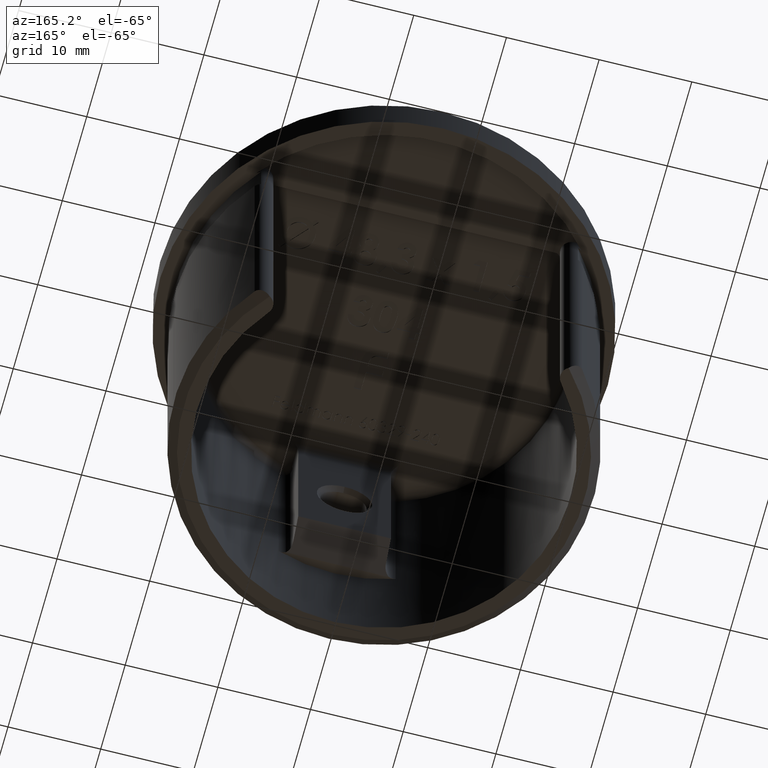
[diagram: clean part render]
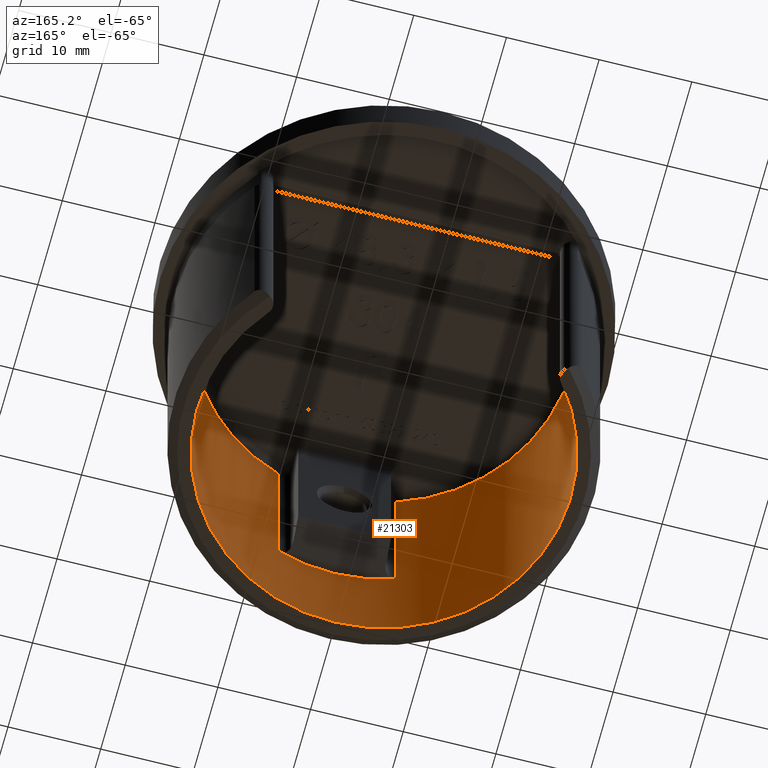
[diagram: same view with one face highlighted and labeled with its STEP entity id]
A machine part, auxiliary view. The second image highlights one B-rep face of the part: STEP entity #21303.
In plain terms, the highlighted cylindrical surface (partial cylindrical patch) has radius 20.15 mm, axis along (-0, -0, 1).
Its self-contained STEP definition (entity closure, byte-faithful):
#796 = ORIENTED_EDGE ( 'NONE', *, *, #9240, .T. ) ;
#821 = CARTESIAN_POINT ( 'NONE',  ( -6.313315926892952800, -19.13542636073835700, -18.00000000000000000 ) ) ;
#1002 = EDGE_CURVE ( 'NONE', #18000, #10190, #8335, .T. ) ;
#1012 = DIRECTION ( 'NONE',  ( -0.0000000000000000000, -0.0000000000000000000, 1.000000000000000000 ) ) ;
#1153 = EDGE_CURVE ( 'NONE', #8378, #13170, #20384, .T. ) ;
#1419 = EDGE_CURVE ( 'NONE', #24452, #14717, #18883, .T. ) ;
#1540 = ORIENTED_EDGE ( 'NONE', *, *, #20988, .T. ) ;
#1795 = CARTESIAN_POINT ( 'NONE',  ( 15.76649122807015000, 12.54751984876640400, -30.00000000000000000 ) ) ;
#2229 = DIRECTION ( 'NONE',  ( -0.0000000000000000000, -0.0000000000000000000, 1.000000000000000000 ) ) ;
#2937 = CIRCLE ( 'NONE', #4903, 20.14999999999999900 ) ;
#3221 = CARTESIAN_POINT ( 'NONE',  ( 0.0000000000000000000, 0.0000000000000000000, 1.000000000000000900 ) ) ;
#3381 = DIRECTION ( 'NONE',  ( -0.0000000000000000000, -0.0000000000000000000, 1.000000000000000000 ) ) ;
#3453 = VECTOR ( 'NONE', #10691, 1000.000000000000000 ) ;
#3459 = DIRECTION ( 'NONE',  ( -1.000000000000000000, 0.0000000000000000000, 0.0000000000000000000 ) ) ;
#3809 = CIRCLE ( 'NONE', #6006, 20.14999999999999900 ) ;
#3869 = CARTESIAN_POINT ( 'NONE',  ( 0.0000000000000000000, 0.0000000000000000000, -30.00000000000000000 ) ) ;
#4368 = CARTESIAN_POINT ( 'NONE',  ( 0.0000000000000000000, 0.0000000000000000000, -18.00000000000000000 ) ) ;
#4465 = ORIENTED_EDGE ( 'NONE', *, *, #12644, .F. ) ;
#4868 = DIRECTION ( 'NONE',  ( -0.0000000000000000000, -0.0000000000000000000, 1.000000000000000000 ) ) ;
#4903 = AXIS2_PLACEMENT_3D ( 'NONE', #20409, #14712, #3459 ) ;
#4943 = CARTESIAN_POINT ( 'NONE',  ( -15.76649122807015300, 12.54751984876640200, -30.00000000000000000 ) ) ;
#5634 = CARTESIAN_POINT ( 'NONE',  ( 15.76649122807015000, 12.54751984876640400, -30.00000000000000000 ) ) ;
#5801 = CYLINDRICAL_SURFACE ( 'NONE', #9521, 20.14999999999999900 ) ;
#6006 = AXIS2_PLACEMENT_3D ( 'NONE', #3869, #2229, #18993 ) ;
#6076 = DIRECTION ( 'NONE',  ( -0.0000000000000000000, -0.0000000000000000000, 1.000000000000000000 ) ) ;
#6249 = DIRECTION ( 'NONE',  ( 0.0000000000000000000, 0.0000000000000000000, 1.000000000000000000 ) ) ;
#6578 = ORIENTED_EDGE ( 'NONE', *, *, #1419, .T. ) ;
#7896 = ORIENTED_EDGE ( 'NONE', *, *, #17235, .T. ) ;
#7900 = ORIENTED_EDGE ( 'NONE', *, *, #1002, .T. ) ;
#8262 = CARTESIAN_POINT ( 'NONE',  ( 0.0000000000000000000, 0.0000000000000000000, 1.000000000000000900 ) ) ;
#8335 = CIRCLE ( 'NONE', #23057, 20.14999999999999900 ) ;
#8378 = VERTEX_POINT ( 'NONE', #8738 ) ;
#8435 = CARTESIAN_POINT ( 'NONE',  ( 6.313315926892952800, -19.13542636073835700, -18.00000000000000000 ) ) ;
#8672 = CARTESIAN_POINT ( 'NONE',  ( 0.0000000000000000000, 0.0000000000000000000, 1.000000000000000900 ) ) ;
#8738 = CARTESIAN_POINT ( 'NONE',  ( -6.313315926892948400, -19.13542636073834300, 1.000000000000000900 ) ) ;
#9196 = VECTOR ( 'NONE', #10061, 1000.000000000000000 ) ;
#9240 = EDGE_CURVE ( 'NONE', #22379, #19460, #22510, .T. ) ;
#9521 = AXIS2_PLACEMENT_3D ( 'NONE', #23025, #6076, #19211 ) ;
#10043 = DIRECTION ( 'NONE',  ( 1.000000000000000000, 0.0000000000000000000, 0.0000000000000000000 ) ) ;
#10061 = DIRECTION ( 'NONE',  ( -0.0000000000000000000, -0.0000000000000000000, 1.000000000000000000 ) ) ;
#10190 = VERTEX_POINT ( 'NONE', #10834 ) ;
#10351 = VERTEX_POINT ( 'NONE', #1795 ) ;
#10691 = DIRECTION ( 'NONE',  ( -0.0000000000000000000, -0.0000000000000000000, 1.000000000000000000 ) ) ;
#10834 = CARTESIAN_POINT ( 'NONE',  ( -15.82882031626141000, 12.46879895561356500, 1.000000000000000000 ) ) ;
#11066 = AXIS2_PLACEMENT_3D ( 'NONE', #4368, #6249, #10043 ) ;
#11195 = DIRECTION ( 'NONE',  ( -1.000000000000000000, 2.504663143554353200E-013, 0.0000000000000000000 ) ) ;
#12029 = DIRECTION ( 'NONE',  ( -1.000000000000000000, 0.0000000000000000000, 0.0000000000000000000 ) ) ;
#12090 = AXIS2_PLACEMENT_3D ( 'NONE', #8672, #1012, #13980 ) ;
#12237 = CARTESIAN_POINT ( 'NONE',  ( -6.313315926892948400, -19.13542636073834300, -30.00000000000000000 ) ) ;
#12644 = EDGE_CURVE ( 'NONE', #10351, #19460, #23010, .T. ) ;
#13170 = VERTEX_POINT ( 'NONE', #821 ) ;
#13980 = DIRECTION ( 'NONE',  ( -1.000000000000000000, 0.0000000000000000000, 0.0000000000000000000 ) ) ;
#14447 = CARTESIAN_POINT ( 'NONE',  ( -15.76649122807015300, 12.54751984876640200, -30.00000000000000000 ) ) ;
#14712 = DIRECTION ( 'NONE',  ( -0.0000000000000000000, -0.0000000000000000000, 1.000000000000000000 ) ) ;
#14717 = VERTEX_POINT ( 'NONE', #16429 ) ;
#15361 = VECTOR ( 'NONE', #23535, 1000.000000000000000 ) ;
#15443 = EDGE_CURVE ( 'NONE', #14717, #22379, #2937, .T. ) ;
#15655 = VECTOR ( 'NONE', #4868, 1000.000000000000000 ) ;
#16136 = CARTESIAN_POINT ( 'NONE',  ( 6.313315926892948400, -19.13542636073834300, -30.00000000000000000 ) ) ;
#16137 = AXIS2_PLACEMENT_3D ( 'NONE', #8262, #21417, #12029 ) ;
#16429 = CARTESIAN_POINT ( 'NONE',  ( 6.313315926892948400, -19.13542636073834300, 1.000000000000000900 ) ) ;
#16671 = ORIENTED_EDGE ( 'NONE', *, *, #15443, .T. ) ;
#17235 = EDGE_CURVE ( 'NONE', #13170, #24452, #18131, .T. ) ;
#18000 = VERTEX_POINT ( 'NONE', #18207 ) ;
#18072 = CIRCLE ( 'NONE', #16137, 20.14999999999999900 ) ;
#18131 = CIRCLE ( 'NONE', #11066, 20.15000000000001600 ) ;
#18207 = CARTESIAN_POINT ( 'NONE',  ( -15.76649122807015300, 12.54751984876640200, 1.000000000000000900 ) ) ;
#18814 = EDGE_CURVE ( 'NONE', #23727, #10351, #3809, .T. ) ;
#18883 = LINE ( 'NONE', #16136, #15655 ) ;
#18925 = ORIENTED_EDGE ( 'NONE', *, *, #1153, .T. ) ;
#18993 = DIRECTION ( 'NONE',  ( -1.000000000000000000, 0.0000000000000000000, 0.0000000000000000000 ) ) ;
#19039 = LINE ( 'NONE', #4943, #3453 ) ;
#19211 = DIRECTION ( 'NONE',  ( 1.000000000000000000, 0.0000000000000000000, 0.0000000000000000000 ) ) ;
#19460 = VERTEX_POINT ( 'NONE', #22998 ) ;
#19539 = CARTESIAN_POINT ( 'NONE',  ( 15.82882031626140000, 12.46879895561357700, 1.000000000000000000 ) ) ;
#20384 = LINE ( 'NONE', #12237, #15361 ) ;
#20388 = ORIENTED_EDGE ( 'NONE', *, *, #18814, .F. ) ;
#20409 = CARTESIAN_POINT ( 'NONE',  ( 0.0000000000000000000, 0.0000000000000000000, 1.000000000000000900 ) ) ;
#20988 = EDGE_CURVE ( 'NONE', #23727, #18000, #19039, .T. ) ;
#21303 = ADVANCED_FACE ( 'NONE', ( #24053 ), #5801, .F. ) ;
#21417 = DIRECTION ( 'NONE',  ( -0.0000000000000000000, -0.0000000000000000000, 1.000000000000000000 ) ) ;
#22379 = VERTEX_POINT ( 'NONE', #19539 ) ;
#22510 = CIRCLE ( 'NONE', #12090, 20.14999999999999900 ) ;
#22998 = CARTESIAN_POINT ( 'NONE',  ( 15.76649122807015000, 12.54751984876640400, 1.000000000000000900 ) ) ;
#23010 = LINE ( 'NONE', #5634, #9196 ) ;
#23025 = CARTESIAN_POINT ( 'NONE',  ( 0.0000000000000000000, 0.0000000000000000000, -30.00000000000000000 ) ) ;
#23057 = AXIS2_PLACEMENT_3D ( 'NONE', #3221, #3381, #11195 ) ;
#23167 = ORIENTED_EDGE ( 'NONE', *, *, #24441, .T. ) ;
#23535 = DIRECTION ( 'NONE',  ( 0.0000000000000000000, 0.0000000000000000000, -1.000000000000000000 ) ) ;
#23727 = VERTEX_POINT ( 'NONE', #14447 ) ;
#24053 = FACE_OUTER_BOUND ( 'NONE', #24092, .T. ) ;
#24092 = EDGE_LOOP ( 'NONE', ( #7900, #23167, #18925, #7896, #6578, #16671, #796, #4465, #20388, #1540 ) ) ;
#24441 = EDGE_CURVE ( 'NONE', #10190, #8378, #18072, .T. ) ;
#24452 = VERTEX_POINT ( 'NONE', #8435 ) ;